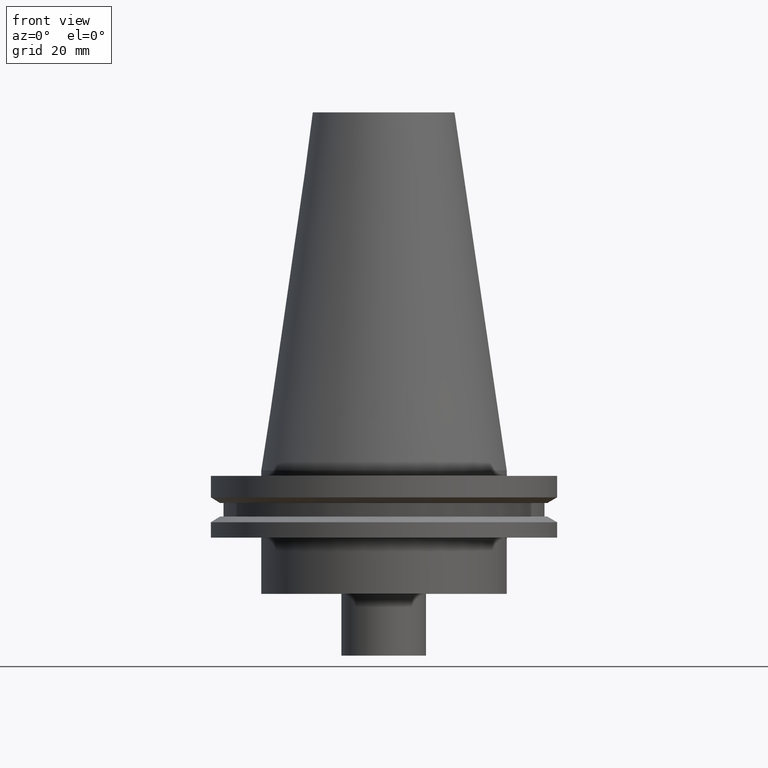
[diagram: clean part render]
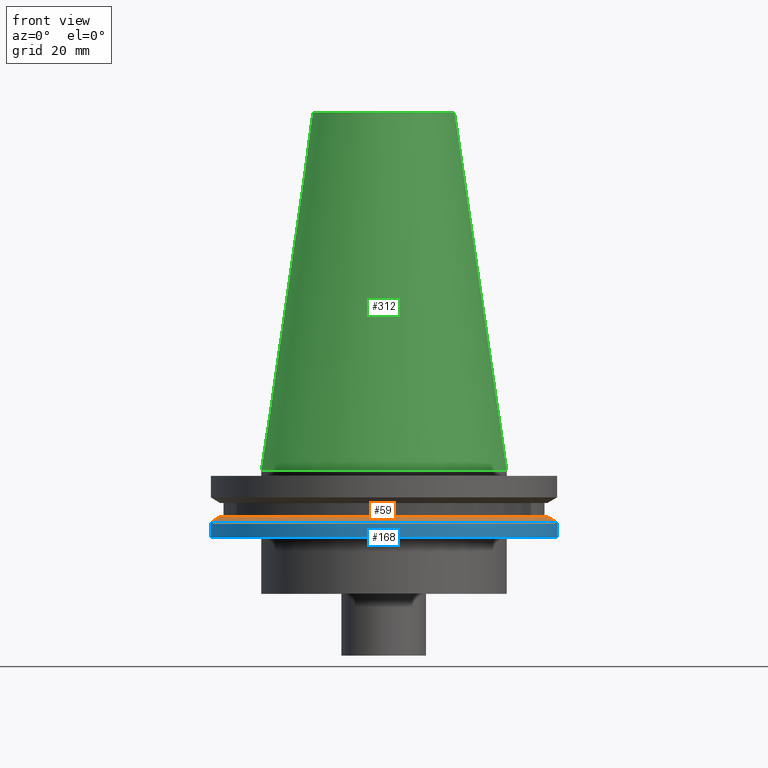
[diagram: same view with three faces highlighted in distinct colors, each labeled with its STEP entity id]
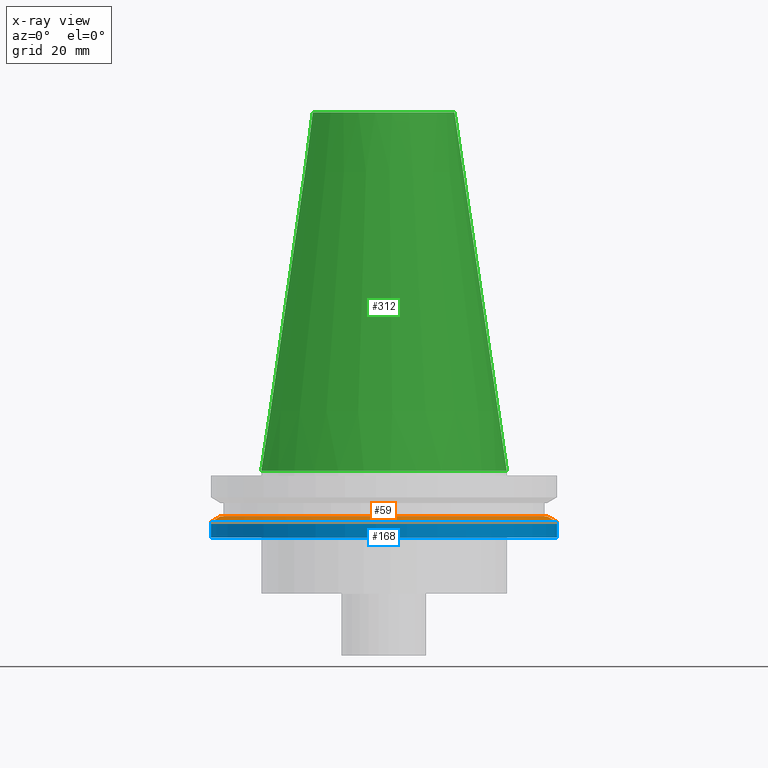
[diagram: x-ray of the same camera — body ghosted, the three highlighted faces saturated]
A machine part, front view with three faces highlighted in distinct colors.
The next image is the same camera in x-ray (body ghosted, the three faces saturated) — at least one of them is partly hidden behind the body in this view.
Their STEP definitions:

[orange] entity #59 — the highlighted conical surface has half-angle 60 deg.
#6 = CIRCLE ( 'NONE', #79, 49.21499999999998920 ) ;
#47 = CARTESIAN_POINT ( 'NONE',  ( 0.000000000000000000, 0.000000000000000000, -14.65761014474876944 ) ) ;
#59 = ADVANCED_FACE ( 'NONE', ( #203, #317 ), #108, .T. ) ;
#63 = DIRECTION ( 'NONE',  ( 1.000000000000000000, 0.000000000000000000, 0.000000000000000000 ) ) ;
#79 = AXIS2_PLACEMENT_3D ( 'NONE', #360, #130, #63 ) ;
#84 = VERTEX_POINT ( 'NONE', #345 ) ;
#108 = CONICAL_SURFACE ( 'NONE', #306, 49.21499999999998920, 1.047197551196554333 ) ;
#130 = DIRECTION ( 'NONE',  ( -0.000000000000000000, -0.000000000000000000, 1.000000000000000000 ) ) ;
#139 = EDGE_CURVE ( 'NONE', #201, #201, #6, .T. ) ;
#146 = CIRCLE ( 'NONE', #165, 46.43919780457007818 ) ;
#151 = ORIENTED_EDGE ( 'NONE', *, *, #139, .T. ) ;
#165 = AXIS2_PLACEMENT_3D ( 'NONE', #392, #186, #256 ) ;
#186 = DIRECTION ( 'NONE',  ( -0.000000000000000000, -0.000000000000000000, 1.000000000000000000 ) ) ;
#188 = EDGE_LOOP ( 'NONE', ( #240 ) ) ;
#201 = VERTEX_POINT ( 'NONE', #287 ) ;
#203 = FACE_BOUND ( 'NONE', #188, .T. ) ;
#240 = ORIENTED_EDGE ( 'NONE', *, *, #298, .F. ) ;
#256 = DIRECTION ( 'NONE',  ( 1.000000000000000000, 0.000000000000000000, 0.000000000000000000 ) ) ;
#287 = CARTESIAN_POINT ( 'NONE',  ( 49.21499999999998920, 0.000000000000000000, -14.65761014474876944 ) ) ;
#290 = DIRECTION ( 'NONE',  ( 0.000000000000000000, 0.000000000000000000, -1.000000000000000000 ) ) ;
#298 = EDGE_CURVE ( 'NONE', #84, #84, #146, .T. ) ;
#306 = AXIS2_PLACEMENT_3D ( 'NONE', #47, #290, #383 ) ;
#317 = FACE_OUTER_BOUND ( 'NONE', #359, .T. ) ;
#345 = CARTESIAN_POINT ( 'NONE',  ( 46.43919780457007818, 0.000000000000000000, -13.05499999999999794 ) ) ;
#359 = EDGE_LOOP ( 'NONE', ( #151 ) ) ;
#360 = CARTESIAN_POINT ( 'NONE',  ( 0.000000000000000000, 0.000000000000000000, -14.65761014474876944 ) ) ;
#383 = DIRECTION ( 'NONE',  ( -1.000000000000000000, 0.000000000000000000, 0.000000000000000000 ) ) ;
#392 = CARTESIAN_POINT ( 'NONE',  ( 0.000000000000000000, 0.000000000000000000, -13.05499999999999794 ) ) ;

[blue] entity #168 — the highlighted cylindrical surface (bore or boss wall) has radius 49.215 mm, axis along (-0, -0, 1).
#6 = CIRCLE ( 'NONE', #79, 49.21499999999998920 ) ;
#19 = EDGE_CURVE ( 'NONE', #311, #311, #376, .T. ) ;
#54 = DIRECTION ( 'NONE',  ( 1.000000000000000000, 0.000000000000000000, 0.000000000000000000 ) ) ;
#63 = DIRECTION ( 'NONE',  ( 1.000000000000000000, 0.000000000000000000, 0.000000000000000000 ) ) ;
#68 = FACE_OUTER_BOUND ( 'NONE', #368, .T. ) ;
#79 = AXIS2_PLACEMENT_3D ( 'NONE', #360, #130, #63 ) ;
#103 = CARTESIAN_POINT ( 'NONE',  ( 49.21499999999998920, 0.000000000000000000, -19.04999999999999716 ) ) ;
#117 = ORIENTED_EDGE ( 'NONE', *, *, #139, .F. ) ;
#128 = AXIS2_PLACEMENT_3D ( 'NONE', #394, #336, #251 ) ;
#130 = DIRECTION ( 'NONE',  ( -0.000000000000000000, -0.000000000000000000, 1.000000000000000000 ) ) ;
#139 = EDGE_CURVE ( 'NONE', #201, #201, #6, .T. ) ;
#140 = AXIS2_PLACEMENT_3D ( 'NONE', #153, #178, #54 ) ;
#153 = CARTESIAN_POINT ( 'NONE',  ( 0.000000000000000000, 0.000000000000000000, -19.04999999999999716 ) ) ;
#168 = ADVANCED_FACE ( 'NONE', ( #224, #68 ), #308, .T. ) ;
#178 = DIRECTION ( 'NONE',  ( -0.000000000000000000, -0.000000000000000000, 1.000000000000000000 ) ) ;
#201 = VERTEX_POINT ( 'NONE', #287 ) ;
#224 = FACE_OUTER_BOUND ( 'NONE', #226, .T. ) ;
#226 = EDGE_LOOP ( 'NONE', ( #117 ) ) ;
#251 = DIRECTION ( 'NONE',  ( 1.000000000000000000, 0.000000000000000000, 0.000000000000000000 ) ) ;
#287 = CARTESIAN_POINT ( 'NONE',  ( 49.21499999999998920, 0.000000000000000000, -14.65761014474876944 ) ) ;
#308 = CYLINDRICAL_SURFACE ( 'NONE', #128, 49.21499999999998920 ) ;
#311 = VERTEX_POINT ( 'NONE', #103 ) ;
#336 = DIRECTION ( 'NONE',  ( -0.000000000000000000, -0.000000000000000000, 1.000000000000000000 ) ) ;
#358 = ORIENTED_EDGE ( 'NONE', *, *, #19, .T. ) ;
#360 = CARTESIAN_POINT ( 'NONE',  ( 0.000000000000000000, 0.000000000000000000, -14.65761014474876944 ) ) ;
#368 = EDGE_LOOP ( 'NONE', ( #358 ) ) ;
#376 = CIRCLE ( 'NONE', #140, 49.21499999999998920 ) ;
#394 = CARTESIAN_POINT ( 'NONE',  ( 0.000000000000000000, 0.000000000000000000, 101.5999999999999943 ) ) ;

[green] entity #312 — the highlighted conical surface has half-angle 8.297 deg.
#8 = EDGE_CURVE ( 'NONE', #135, #135, #176, .T. ) ;
#9 = CIRCLE ( 'NONE', #277, 20.10819343178871321 ) ;
#37 = ORIENTED_EDGE ( 'NONE', *, *, #49, .F. ) ;
#39 = DIRECTION ( 'NONE',  ( 0.000000000000000000, 0.000000000000000000, -1.000000000000000000 ) ) ;
#40 = EDGE_LOOP ( 'NONE', ( #37 ) ) ;
#48 = DIRECTION ( 'NONE',  ( -0.000000000000000000, -0.000000000000000000, 1.000000000000000000 ) ) ;
#49 = EDGE_CURVE ( 'NONE', #321, #321, #9, .T. ) ;
#72 = AXIS2_PLACEMENT_3D ( 'NONE', #163, #39, #167 ) ;
#80 = CARTESIAN_POINT ( 'NONE',  ( 0.000000000000000000, 0.000000000000000000, 0.000000000000000000 ) ) ;
#82 = DIRECTION ( 'NONE',  ( 1.000000000000000000, 0.000000000000000000, 0.000000000000000000 ) ) ;
#126 = AXIS2_PLACEMENT_3D ( 'NONE', #80, #243, #175 ) ;
#134 = CARTESIAN_POINT ( 'NONE',  ( 34.92499999999999005, 0.000000000000000000, 0.000000000000000000 ) ) ;
#135 = VERTEX_POINT ( 'NONE', #134 ) ;
#136 = ORIENTED_EDGE ( 'NONE', *, *, #8, .T. ) ;
#138 = FACE_BOUND ( 'NONE', #40, .T. ) ;
#143 = CARTESIAN_POINT ( 'NONE',  ( 0.000000000000000000, 0.000000000000000000, 101.5999999999999801 ) ) ;
#163 = CARTESIAN_POINT ( 'NONE',  ( 0.000000000000000000, 0.000000000000000000, 0.000000000000000000 ) ) ;
#167 = DIRECTION ( 'NONE',  ( -1.000000000000000000, 0.000000000000000000, 0.000000000000000000 ) ) ;
#175 = DIRECTION ( 'NONE',  ( 1.000000000000000000, 0.000000000000000000, 0.000000000000000000 ) ) ;
#176 = CIRCLE ( 'NONE', #126, 34.92499999999999005 ) ;
#204 = CARTESIAN_POINT ( 'NONE',  ( 20.10819343178871321, 0.000000000000000000, 101.5999999999999801 ) ) ;
#205 = EDGE_LOOP ( 'NONE', ( #136 ) ) ;
#243 = DIRECTION ( 'NONE',  ( -0.000000000000000000, -0.000000000000000000, 1.000000000000000000 ) ) ;
#277 = AXIS2_PLACEMENT_3D ( 'NONE', #143, #48, #82 ) ;
#312 = ADVANCED_FACE ( 'NONE', ( #138, #370 ), #382, .T. ) ;
#321 = VERTEX_POINT ( 'NONE', #204 ) ;
#370 = FACE_OUTER_BOUND ( 'NONE', #205, .T. ) ;
#382 = CONICAL_SURFACE ( 'NONE', #72, 34.92499999999999005, 0.1448138465474119452 ) ;